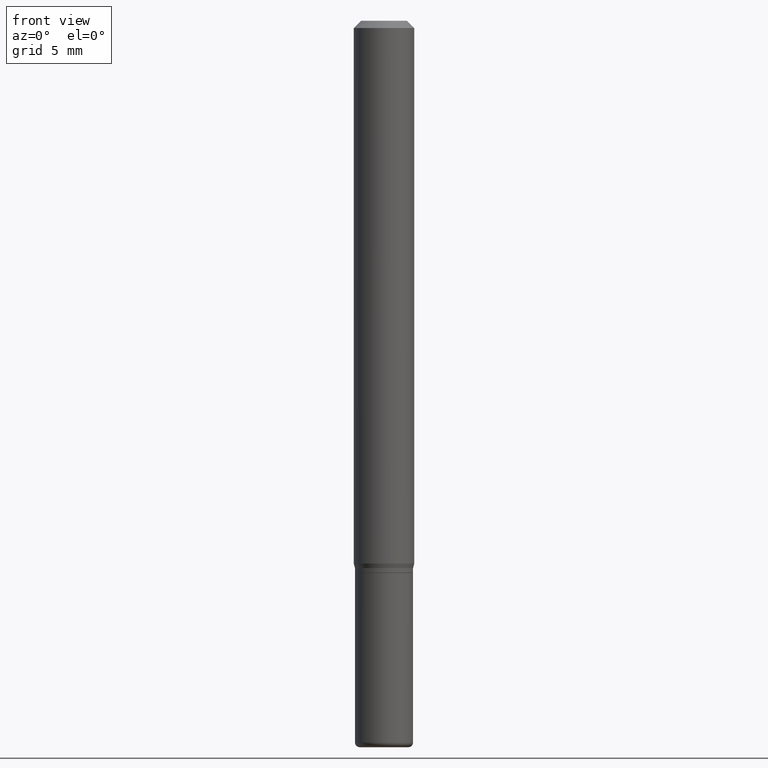
[diagram: clean part render]
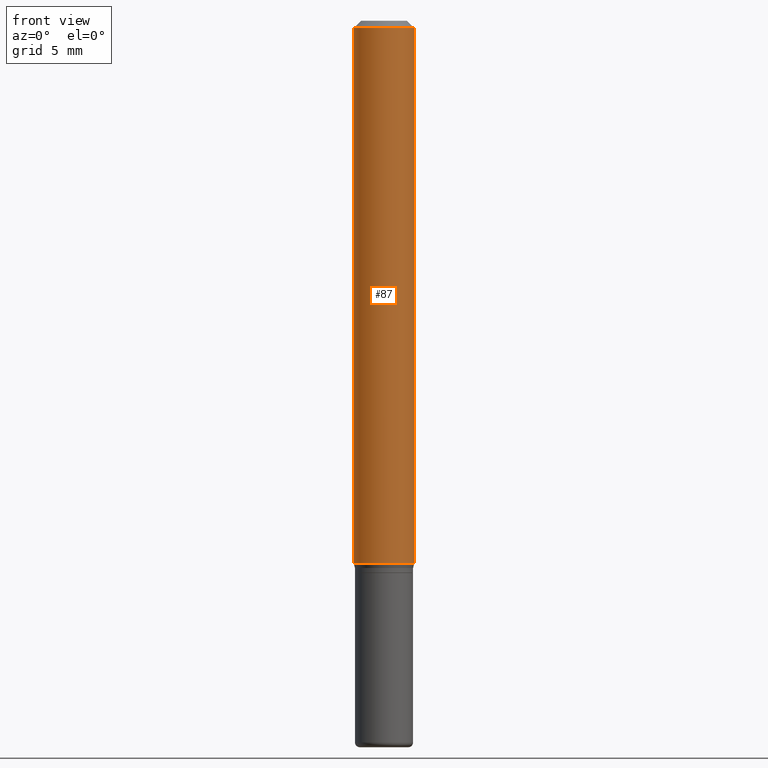
[diagram: same view with one face highlighted and labeled with its STEP entity id]
A machine part, front view. The second image highlights one B-rep face of the part: STEP entity #87.
In plain terms, the highlighted cylindrical surface (edge-blend (fillet) strip) has radius 1.5875 mm, axis along (-0, 0, 1).
Its self-contained STEP definition (entity closure, byte-faithful):
#3 = CARTESIAN_POINT ( 'NONE',  ( 0.06250000000000000000, -4.364351673553916694E-16, 3.047610484872459871E-30 ) ) ;
#4 = DIRECTION ( 'NONE',  ( -2.445468806185136597E-29, 3.491481338843145583E-15, 1.000000000000000000 ) ) ;
#12 = CARTESIAN_POINT ( 'NONE',  ( -0.06250000000000000000, 4.440892098500626162E-16, -3.074334431409316114E-30 ) ) ;
#15 = DIRECTION ( 'NONE',  ( 1.000000000000000000, -6.982962677686266711E-15, 0.000000000000000000 ) ) ;
#21 = CARTESIAN_POINT ( 'NONE',  ( 2.740563216406685153E-29, -3.912797948517150914E-15, -1.120669872981077786 ) ) ;
#37 = VERTEX_POINT ( 'NONE', #249 ) ;
#38 = DIRECTION ( 'NONE',  ( -2.445468806185136877E-29, 3.491481338843145188E-15, 1.000000000000000000 ) ) ;
#42 = VERTEX_POINT ( 'NONE', #290 ) ;
#87 = ADVANCED_FACE ( 'NONE', ( #405 ), #169, .T. ) ;
#112 = AXIS2_PLACEMENT_3D ( 'NONE', #368, #484, #15 ) ;
#116 = VERTEX_POINT ( 'NONE', #333 ) ;
#120 = CIRCLE ( 'NONE', #304, 0.06250000000000000000 ) ;
#124 = VERTEX_POINT ( 'NONE', #496 ) ;
#140 = EDGE_CURVE ( 'NONE', #37, #42, #120, .T. ) ;
#145 = LINE ( 'NONE', #12, #196 ) ;
#169 = CYLINDRICAL_SURFACE ( 'NONE', #200, 0.06250000000000000000 ) ;
#196 = VECTOR ( 'NONE', #375, 39.37007874015748143 ) ;
#200 = AXIS2_PLACEMENT_3D ( 'NONE', #322, #4, #423 ) ;
#217 = ORIENTED_EDGE ( 'NONE', *, *, #140, .T. ) ;
#249 = CARTESIAN_POINT ( 'NONE',  ( -0.06250000000000000000, -3.468708738667088298E-15, -1.120669872981077786 ) ) ;
#257 = DIRECTION ( 'NONE',  ( -2.445468806185136597E-29, 3.491481338843145583E-15, 1.000000000000000000 ) ) ;
#269 = EDGE_LOOP ( 'NONE', ( #513, #217, #396, #355 ) ) ;
#270 = EDGE_CURVE ( 'NONE', #37, #116, #145, .T. ) ;
#290 = CARTESIAN_POINT ( 'NONE',  ( 0.06250000000000000000, -4.349233115872542583E-15, -1.120669872981077786 ) ) ;
#304 = AXIS2_PLACEMENT_3D ( 'NONE', #21, #257, #372 ) ;
#322 = CARTESIAN_POINT ( 'NONE',  ( 0.000000000000000000, 0.000000000000000000, 0.000000000000000000 ) ) ;
#333 = CARTESIAN_POINT ( 'NONE',  ( -0.06250000000000000000, -1.538495874449835789E-15, -0.01499999999999970281 ) ) ;
#342 = CIRCLE ( 'NONE', #112, 0.06250000000000000000 ) ;
#355 = ORIENTED_EDGE ( 'NONE', *, *, #503, .F. ) ;
#365 = VECTOR ( 'NONE', #38, 39.37007874015748143 ) ;
#368 = CARTESIAN_POINT ( 'NONE',  ( 3.668203209277632395E-31, -5.237222008264614861E-17, -0.01499999999999970281 ) ) ;
#372 = DIRECTION ( 'NONE',  ( 1.000000000000000000, -6.982962677686262766E-15, 0.000000000000000000 ) ) ;
#375 = DIRECTION ( 'NONE',  ( -2.445468806185136877E-29, 3.491481338843145188E-15, 1.000000000000000000 ) ) ;
#396 = ORIENTED_EDGE ( 'NONE', *, *, #469, .T. ) ;
#405 = FACE_OUTER_BOUND ( 'NONE', #269, .T. ) ;
#423 = DIRECTION ( 'NONE',  ( 1.000000000000000000, -6.982962677686266711E-15, 4.876176775795935793E-29 ) ) ;
#431 = LINE ( 'NONE', #3, #365 ) ;
#469 = EDGE_CURVE ( 'NONE', #42, #124, #431, .T. ) ;
#484 = DIRECTION ( 'NONE',  ( -2.445468806185136597E-29, 3.491481338843145583E-15, 1.000000000000000000 ) ) ;
#496 = CARTESIAN_POINT ( 'NONE',  ( 0.06250000000000000000, -4.888073874380378612E-16, -0.01499999999999970281 ) ) ;
#503 = EDGE_CURVE ( 'NONE', #116, #124, #342, .T. ) ;
#513 = ORIENTED_EDGE ( 'NONE', *, *, #270, .F. ) ;